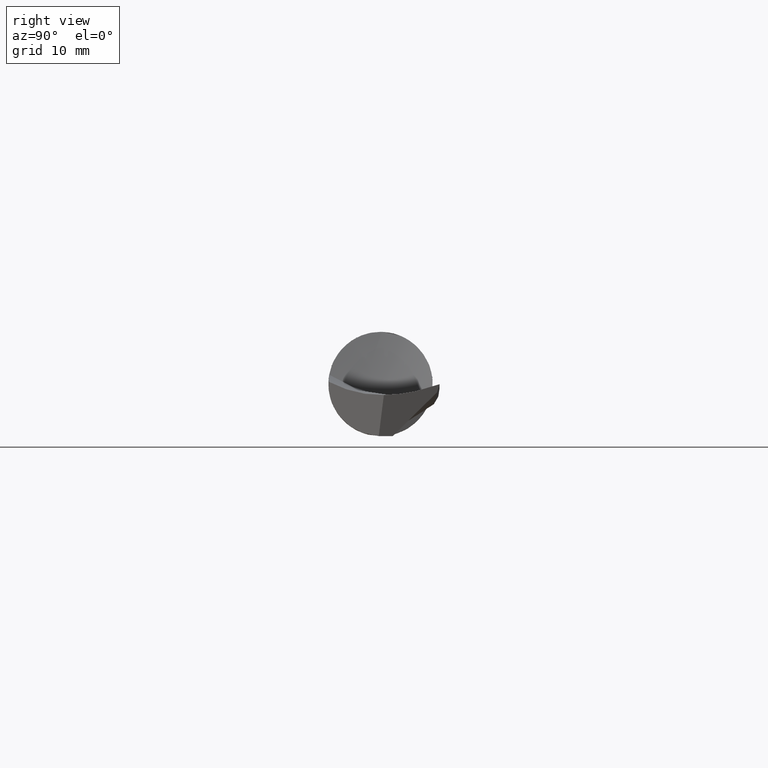
[diagram: clean part render]
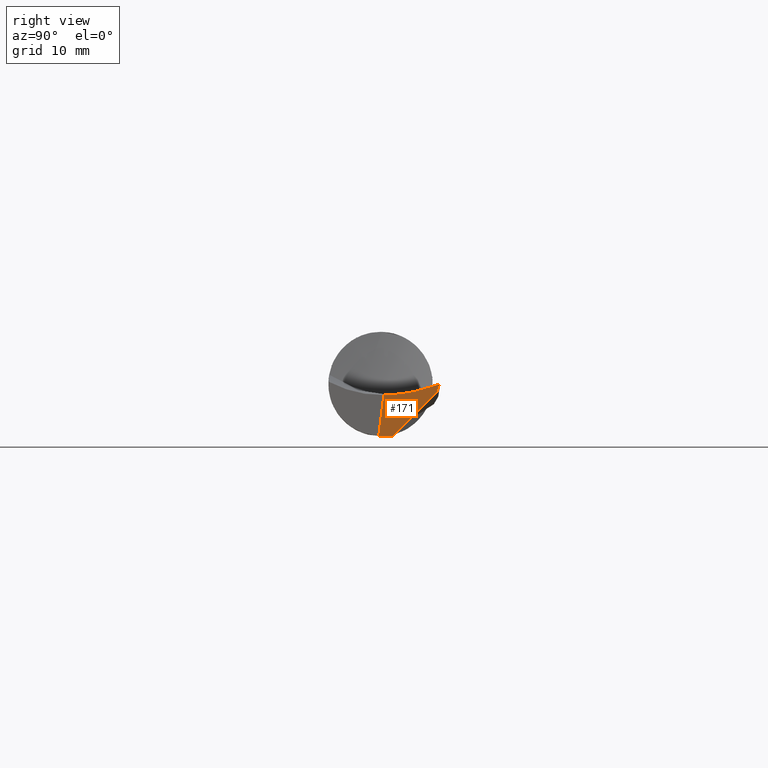
[diagram: same view with one face highlighted and labeled with its STEP entity id]
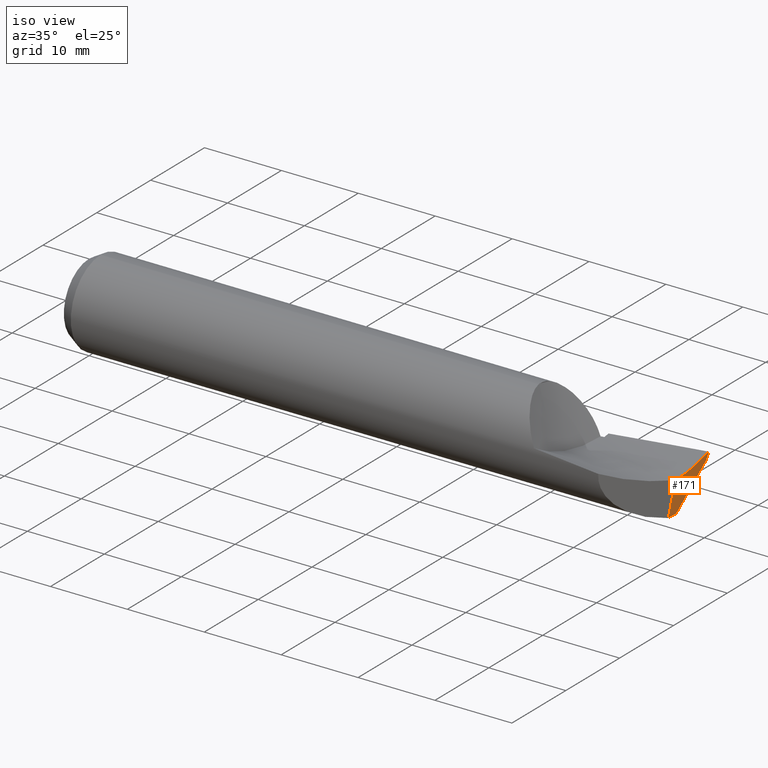
[diagram: same view with one face highlighted and labeled with its STEP entity id]
A machine part, right view. The second image highlights one B-rep face of the part: STEP entity #171.
A second angle (iso view) of the same face is appended — the face is thin or edge-on in the first view.
In plain terms, the highlighted planar face has unit normal (-0.9925, 0.0087, 0.1219).
Its self-contained STEP definition (entity closure, byte-faithful):
#9 = VERTEX_POINT ( 'NONE', #710 ) ;
#12 = ORIENTED_EDGE ( 'NONE', *, *, #672, .F. ) ;
#20 = DIRECTION ( 'NONE',  ( -0.008726535498366258525, -0.9999619230641711987, 0.000000000000000000 ) ) ;
#30 = B_SPLINE_CURVE_WITH_KNOTS ( 'NONE', 3,
 ( #405, #529, #416, #184 ),
 .UNSPECIFIED., .F., .F.,
 ( 4, 4 ),
 ( 6.281806324945532255E-05, 0.006714991020779010472 ),
 .UNSPECIFIED. ) ;
#43 = EDGE_CURVE ( 'NONE', #9, #185, #615, .T. ) ;
#46 = VERTEX_POINT ( 'NONE', #276 ) ;
#80 = CARTESIAN_POINT ( 'NONE',  ( 2.992943527074801047, 0.05368886949584446289, -0.04447926573626161117 ) ) ;
#83 = CARTESIAN_POINT ( 'NONE',  ( 3.000000000000000444, 0.2477392110322483021, -0.0008026259127264761661 ) ) ;
#85 = CARTESIAN_POINT ( 'NONE',  ( 2.971045210168150152, -0.004983436051679127933, -0.2186499999999999277 ) ) ;
#109 = CARTESIAN_POINT ( 'NONE',  ( 2.971088699955716450, 0.000000000000000000, -0.2186499999999999277 ) ) ;
#110 = EDGE_LOOP ( 'NONE', ( #388, #183, #620, #12, #178, #634 ) ) ;
#135 = CARTESIAN_POINT ( 'NONE',  ( 2.995650168487128173, 0.2365632825314395171, -0.03543351693485011222 ) ) ;
#138 = CARTESIAN_POINT ( 'NONE',  ( 2.999274707140291429, 0.2458870927091102165, -0.006577803681580489219 ) ) ;
#149 = CARTESIAN_POINT ( 'NONE',  ( 2.992624683810753083, 0.03385053414722247189, -0.04566598811201510316 ) ) ;
#171 = ADVANCED_FACE ( 'NONE', ( #603 ), #366, .F. ) ;
#178 = ORIENTED_EDGE ( 'NONE', *, *, #43, .F. ) ;
#179 = LINE ( 'NONE', #85, #370 ) ;
#183 = ORIENTED_EDGE ( 'NONE', *, *, #251, .T. ) ;
#184 = CARTESIAN_POINT ( 'NONE',  ( 2.995650168487128173, 0.2365632825314395171, -0.03543351693485011222 ) ) ;
#185 = VERTEX_POINT ( 'NONE', #435 ) ;
#188 = CARTESIAN_POINT ( 'NONE',  ( 2.994331206119607902, 0.1133106296732912799, -0.03741539065945204828 ) ) ;
#191 = B_SPLINE_CURVE_WITH_KNOTS ( 'NONE', 3,
 ( #358, #322, #305, #188, #327, #80, #149, #731 ),
 .UNSPECIFIED., .F., .F.,
 ( 4, 2, 2, 4 ),
 ( 7.173462370684666684E-18, 0.003035248955598827438, 0.004552873433398237253, 0.006070497911197647069 ),
 .UNSPECIFIED. ) ;
#198 = EDGE_CURVE ( 'NONE', #404, #46, #191, .T. ) ;
#210 = DIRECTION ( 'NONE',  ( 0.1218739150664907706, 0.000000000000000000, 0.9925455903012041503 ) ) ;
#251 = EDGE_CURVE ( 'NONE', #534, #404, #584, .T. ) ;
#253 = VECTOR ( 'NONE', #540, 39.37007874015748854 ) ;
#276 = CARTESIAN_POINT ( 'NONE',  ( 2.992409909881779573, 0.01404577464189131833, -0.04600755233719699966 ) ) ;
#296 = CARTESIAN_POINT ( 'NONE',  ( 2.995650168487128173, 0.2365632825314395171, -0.03543351693485011222 ) ) ;
#305 = CARTESIAN_POINT ( 'NONE',  ( 2.996235550854351004, 0.1720403349151023165, -0.02608037137611564360 ) ) ;
#322 = CARTESIAN_POINT ( 'NONE',  ( 2.997909695912627903, 0.2103325509907039703, -0.01516757485499540224 ) ) ;
#327 = CARTESIAN_POINT ( 'NONE',  ( 2.993796581184938521, 0.09343502413978028998, -0.04035679793326746312 ) ) ;
#329 = CARTESIAN_POINT ( 'NONE',  ( 2.971051103806576332, -0.004883656855270843838, -0.2186090934945076891 ) ) ;
#336 = CARTESIAN_POINT ( 'NONE',  ( 2.971039849105131747, -0.007324286134754693679, -0.2185272919628489519 ) ) ;
#348 = VERTEX_POINT ( 'NONE', #609 ) ;
#358 = CARTESIAN_POINT ( 'NONE',  ( 3.000000000000000444, 0.2477392110322483021, -0.0008026259127264761661 ) ) ;
#363 = CARTESIAN_POINT ( 'NONE',  ( 2.996374817859074113, 0.2384364633021292534, -0.02966507670246797818 ) ) ;
#366 = PLANE ( 'NONE',  #417 ) ;
#370 = VECTOR ( 'NONE', #20, 39.37007874015748854 ) ;
#380 = CARTESIAN_POINT ( 'NONE',  ( 3.000000000000000444, 0.2477392110322483021, -0.0008026259127264761661 ) ) ;
#388 = ORIENTED_EDGE ( 'NONE', *, *, #580, .T. ) ;
#404 = VERTEX_POINT ( 'NONE', #444 ) ;
#405 = CARTESIAN_POINT ( 'NONE',  ( 2.971533666062131207, 0.05098806548735788924, -0.2186499999999999277 ) ) ;
#416 = CARTESIAN_POINT ( 'NONE',  ( 2.987540355590121433, 0.1753319710273700816, -0.09712830031009450638 ) ) ;
#417 = AXIS2_PLACEMENT_3D ( 'NONE', #83, #727, #210 ) ;
#418 = CARTESIAN_POINT ( 'NONE',  ( 2.998549573203606489, 0.2440296990781548048, -0.01235131224925059730 ) ) ;
#435 = CARTESIAN_POINT ( 'NONE',  ( 2.971039849105131747, -0.007324286134754693679, -0.2185272919628489519 ) ) ;
#444 = CARTESIAN_POINT ( 'NONE',  ( 3.000000000000000444, 0.2477392110322483021, -0.0008026259127264761661 ) ) ;
#476 = CARTESIAN_POINT ( 'NONE',  ( 2.997099628860726117, 0.2403043851209821224, -0.02389494638802533433 ) ) ;
#529 = CARTESIAN_POINT ( 'NONE',  ( 2.979501768381279003, 0.1134645655244296419, -0.1581978106672607687 ) ) ;
#534 = VERTEX_POINT ( 'NONE', #296 ) ;
#535 = CARTESIAN_POINT ( 'NONE',  ( 2.960552829017626397, -0.01781130622226041391, -0.3031886316655612035 ) ) ;
#540 = DIRECTION ( 'NONE',  ( 0.1220122463319276429, 0.1220122463319270323, 0.9850005195379716305 ) ) ;
#541 = CARTESIAN_POINT ( 'NONE',  ( 2.971067388946768695, -0.002441999748250356459, -0.2186499999999999555 ) ) ;
#578 = EDGE_CURVE ( 'NONE', #348, #9, #179, .T. ) ;
#580 = EDGE_CURVE ( 'NONE', #348, #534, #30, .T. ) ;
#584 = B_SPLINE_CURVE_WITH_KNOTS ( 'NONE', 3,
 ( #135, #363, #476, #709, #418, #138, #380 ),
 .UNSPECIFIED., .F., .F.,
 ( 4, 3, 4 ),
 ( 0.000000000000000000, 0.0004654368458456853842, 0.0009308752179383525394 ),
 .UNSPECIFIED. ) ;
#603 = FACE_OUTER_BOUND ( 'NONE', #110, .T. ) ;
#609 = CARTESIAN_POINT ( 'NONE',  ( 2.971533666062131207, 0.05098806548735788924, -0.2186499999999999277 ) ) ;
#615 =( BOUNDED_CURVE ( )  B_SPLINE_CURVE ( 3, ( #109, #541, #329, #336 ),
 .UNSPECIFIED., .F., .T. ) 
 B_SPLINE_CURVE_WITH_KNOTS ( ( 4, 4 ),
 ( 6.212232684215155842, 6.245736716187258786 ),
 .UNSPECIFIED. ) 
 CURVE ( )  GEOMETRIC_REPRESENTATION_ITEM ( )  RATIONAL_B_SPLINE_CURVE ( ( 1.000000000000000000, 0.9999064588410366827, 0.9999064588410366827, 1.000000000000000000 ) ) 
 REPRESENTATION_ITEM ( '' )  );
#620 = ORIENTED_EDGE ( 'NONE', *, *, #198, .T. ) ;
#634 = ORIENTED_EDGE ( 'NONE', *, *, #578, .F. ) ;
#651 = LINE ( 'NONE', #535, #253 ) ;
#672 = EDGE_CURVE ( 'NONE', #185, #46, #651, .T. ) ;
#709 = CARTESIAN_POINT ( 'NONE',  ( 2.997824599843678772, 0.2421670390460103905, -0.01812313878070151429 ) ) ;
#710 = CARTESIAN_POINT ( 'NONE',  ( 2.971088699955716450, 0.000000000000000000, -0.2186499999999999277 ) ) ;
#727 = DIRECTION ( 'NONE',  ( -0.9925083585251990304, 0.008661489226064821023, 0.1218693434051474900 ) ) ;
#731 = CARTESIAN_POINT ( 'NONE',  ( 2.992409909881779573, 0.01404577464189131833, -0.04600755233719699966 ) ) ;